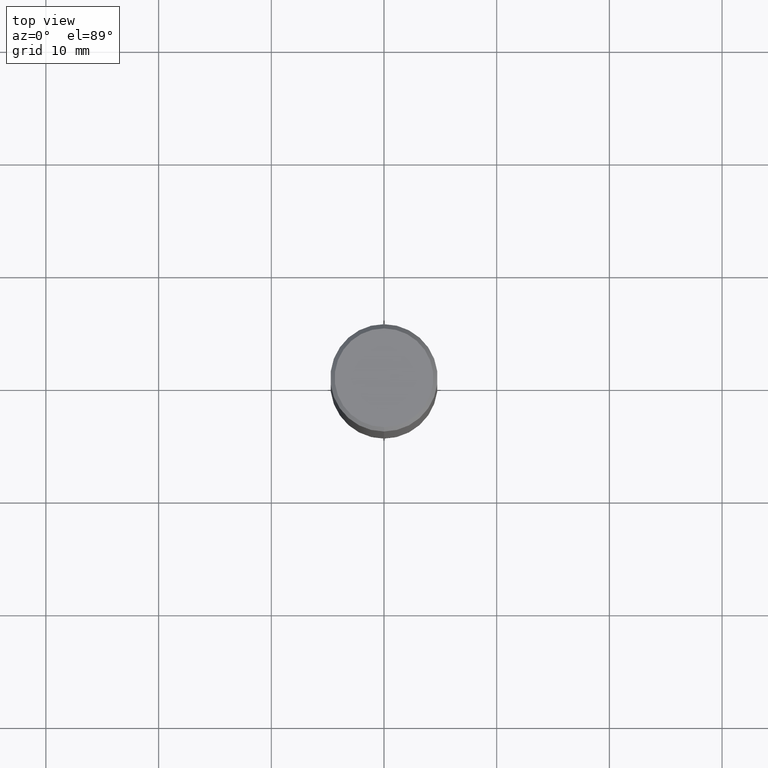
[diagram: clean part render]
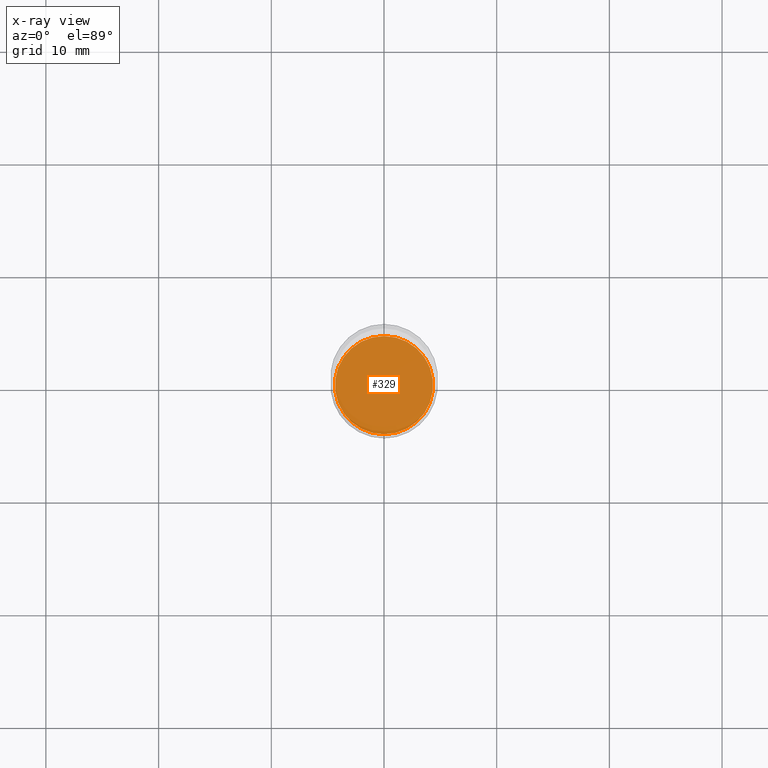
[diagram: x-ray — body ghosted, one internal face saturated and labeled with its STEP entity id]
A machine part, top view, then the same camera in x-ray: the body is ghosted and one INTERNAL B-rep face — a face not visible from any outside direction — is saturated and labeled: STEP entity #329.
In plain terms, the highlighted planar face has unit normal (-0, 0, 1).
Its self-contained STEP definition (entity closure, byte-faithful):
#21 = EDGE_CURVE ( 'NONE', #34, #261, #469, .T. ) ;
#23 = ORIENTED_EDGE ( 'NONE', *, *, #21, .F. ) ;
#34 = VERTEX_POINT ( 'NONE', #321 ) ;
#50 = AXIS2_PLACEMENT_3D ( 'NONE', #89, #247, #401 ) ;
#60 = AXIS2_PLACEMENT_3D ( 'NONE', #305, #505, #154 ) ;
#89 = CARTESIAN_POINT ( 'NONE',  ( 3.667660301732476418E-29, -5.237999482769865382E-15, -1.500000000000000222 ) ) ;
#117 = DIRECTION ( 'NONE',  ( -2.445106867821650572E-29, 3.491999655179909992E-15, 1.000000000000000000 ) ) ;
#123 = FACE_OUTER_BOUND ( 'NONE', #454, .T. ) ;
#127 = CIRCLE ( 'NONE', #60, 0.1713999999999999690 ) ;
#154 = DIRECTION ( 'NONE',  ( -6.982962677686266711E-15, -1.000000000000000000, 3.187687273820611169E-15 ) ) ;
#201 = CARTESIAN_POINT ( 'NONE',  ( 3.667660301732476418E-29, -5.237999482769865382E-15, -1.500000000000000222 ) ) ;
#247 = DIRECTION ( 'NONE',  ( -2.445106867821650011E-29, 3.491999655179910386E-15, 1.000000000000000000 ) ) ;
#261 = VERTEX_POINT ( 'NONE', #338 ) ;
#283 = PLANE ( 'NONE',  #50 ) ;
#305 = CARTESIAN_POINT ( 'NONE',  ( 3.667660301732476418E-29, -5.237999482769865382E-15, -1.500000000000000222 ) ) ;
#318 = DIRECTION ( 'NONE',  ( -6.982962677686266711E-15, -1.000000000000000000, 3.187687273820611169E-15 ) ) ;
#321 = CARTESIAN_POINT ( 'NONE',  ( 1.219646605932247841E-15, 0.1713999999999947510, -1.500000000000000666 ) ) ;
#329 = ADVANCED_FACE ( 'NONE', ( #123 ), #283, .F. ) ;
#338 = CARTESIAN_POINT ( 'NONE',  ( -1.196879802955389158E-15, -0.1714000000000052149, -1.499999999999999556 ) ) ;
#340 = ORIENTED_EDGE ( 'NONE', *, *, #370, .F. ) ;
#370 = EDGE_CURVE ( 'NONE', #261, #34, #127, .T. ) ;
#401 = DIRECTION ( 'NONE',  ( -6.982962677686265922E-15, -1.000000000000000000, 3.491999655179910386E-15 ) ) ;
#454 = EDGE_LOOP ( 'NONE', ( #340, #23 ) ) ;
#469 = CIRCLE ( 'NONE', #485, 0.1713999999999999690 ) ;
#485 = AXIS2_PLACEMENT_3D ( 'NONE', #201, #117, #318 ) ;
#505 = DIRECTION ( 'NONE',  ( -2.445106867821650572E-29, 3.491999655179909992E-15, 1.000000000000000000 ) ) ;